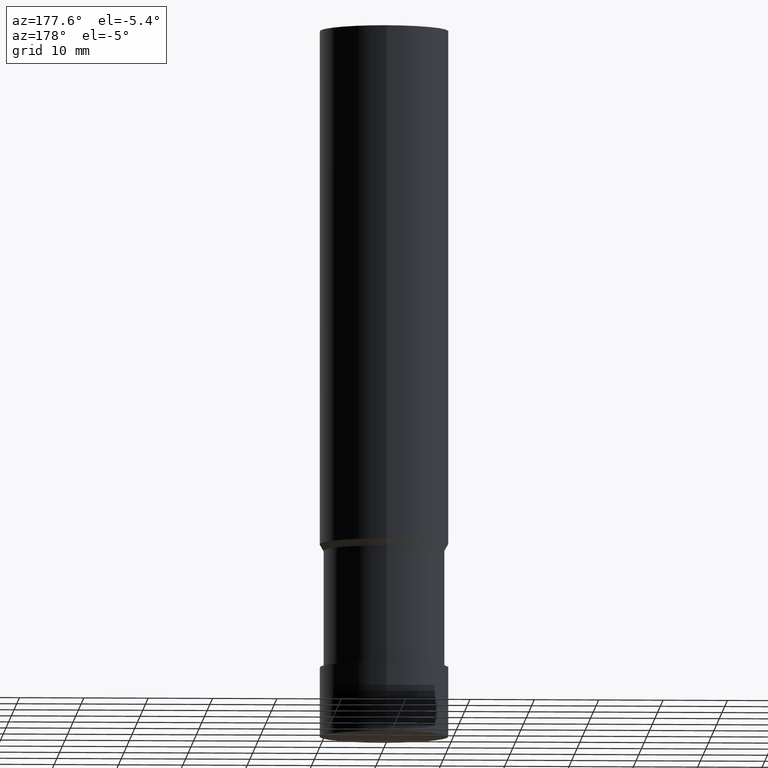
[diagram: clean part render]
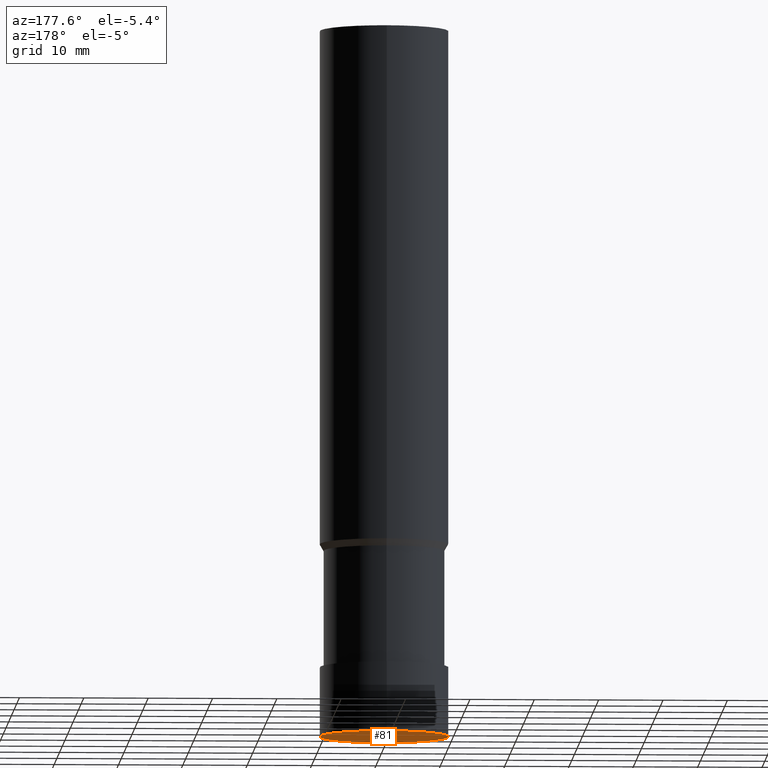
[diagram: same view with one face highlighted and labeled with its STEP entity id]
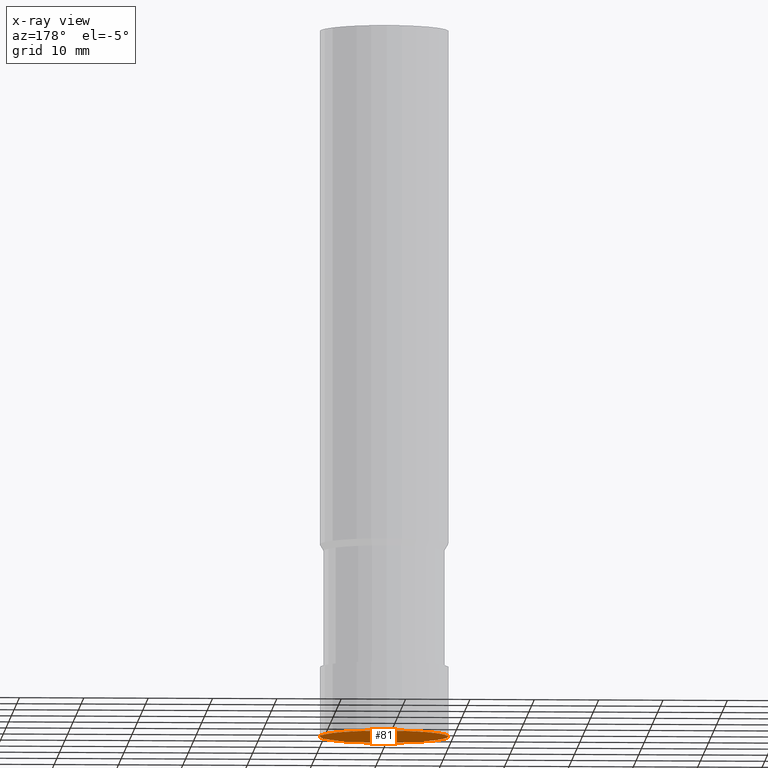
[diagram: x-ray of the same camera — body ghosted, the highlighted face saturated]
A machine part, auxiliary view. The second image highlights one B-rep face of the part: STEP entity #81.
The next image is the same camera in x-ray: the body ghosted, the highlighted face saturated — about 0% of this face is hidden behind the body in this view.
In plain terms, the highlighted planar face has unit normal (0, 0, -1).
Its self-contained STEP definition (entity closure, byte-faithful):
#81=ADVANCED_FACE('',(#100),#101,.T.);
#100=FACE_OUTER_BOUND('',#119,.T.);
#101=PLANE('',#120);
#119=EDGE_LOOP('',(#150));
#120=AXIS2_PLACEMENT_3D('',#151,#152,#153);
#150=ORIENTED_EDGE('',*,*,#159,.T.);
#151=CARTESIAN_POINT('',(0.0,5.0,0.0));
#152=DIRECTION('',(6.12323399573677E-017,1.22464679914735E-016,-1.0));
#153=DIRECTION('',(-1.23259516440783E-032,1.0,1.22464679914735E-016));
#159=EDGE_CURVE('',#170,#170,#171,.T.);
#170=VERTEX_POINT('',#182);
#171=CIRCLE('',#183,10.0);
#182=CARTESIAN_POINT('',(0.0,10.0,0.0));
#183=AXIS2_PLACEMENT_3D('',#199,#200,#201);
#199=CARTESIAN_POINT('',(0.0,0.0,0.0));
#200=DIRECTION('',(6.12323399573677E-017,1.22464679914735E-016,-1.0));
#201=DIRECTION('',(-1.23259516440783E-032,1.0,1.22464679914735E-016));